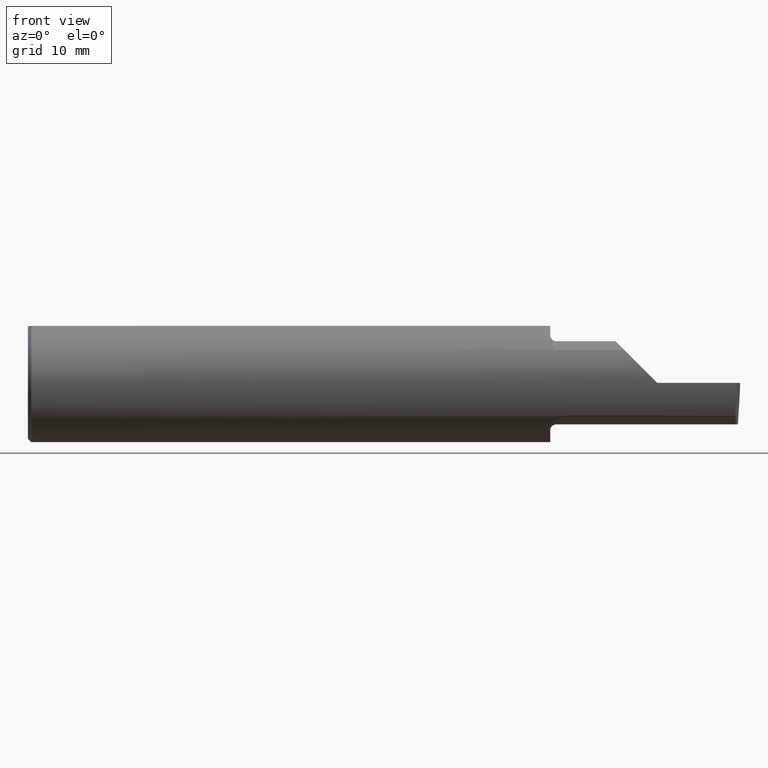
[diagram: clean part render]
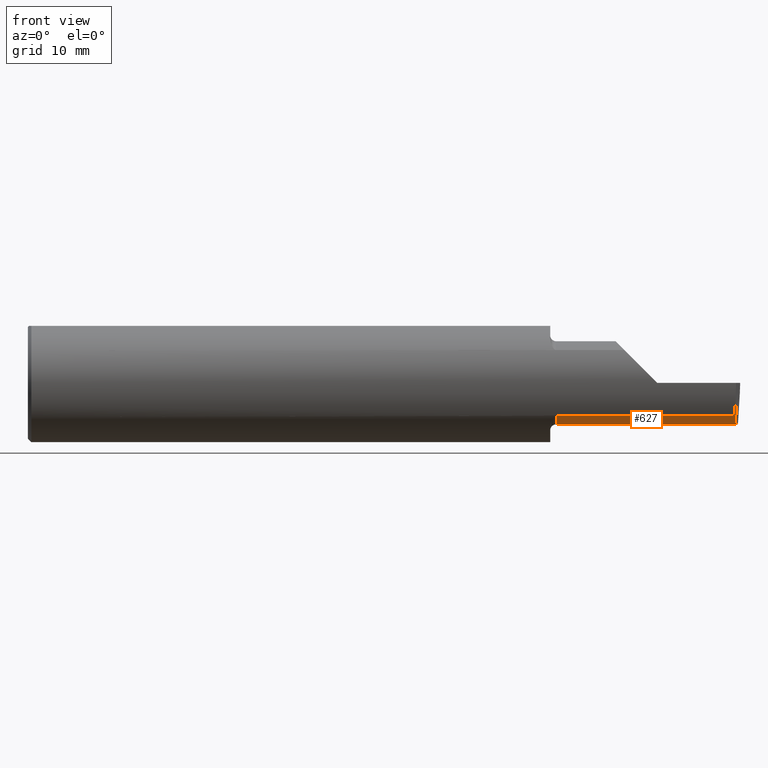
[diagram: same view with one face highlighted and labeled with its STEP entity id]
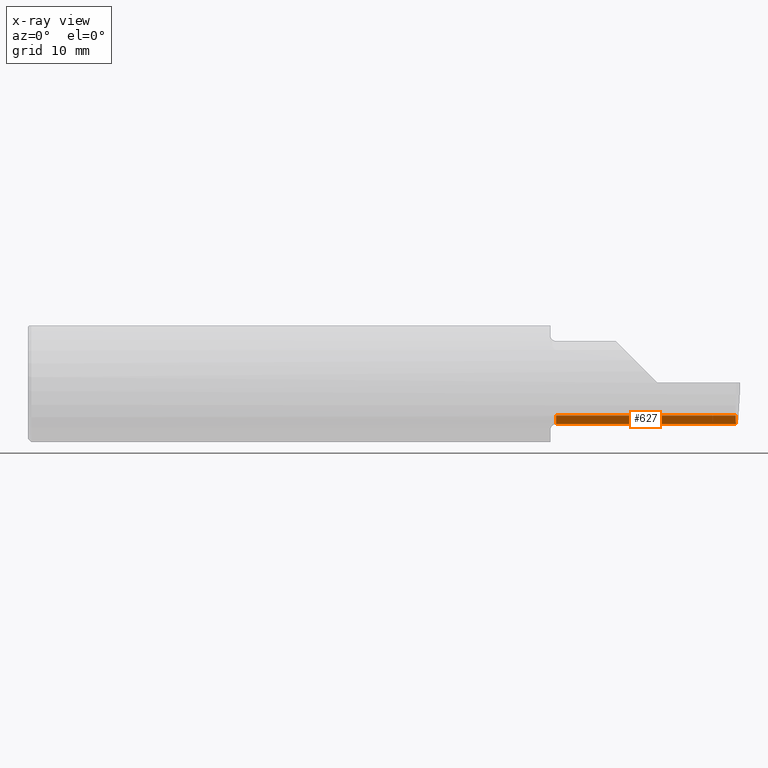
[diagram: x-ray of the same camera — body ghosted, the highlighted face saturated]
A machine part, front view. The second image highlights one B-rep face of the part: STEP entity #627.
The next image is the same camera in x-ray: the body ghosted, the highlighted face saturated — about 0% of this face is hidden behind the body in this view.
In plain terms, the highlighted cylindrical surface (partial cylindrical patch) has radius 4.445 mm, axis along (-1, -0, -0).
Its self-contained STEP definition (entity closure, byte-faithful):
#5 = CIRCLE ( 'NONE', #331, 0.1749999999999999889 ) ;
#7 = CARTESIAN_POINT ( 'NONE',  ( 2.200000000000000178, -0.1008499999999999674, 0.000000000000000000 ) ) ;
#18 = DIRECTION ( 'NONE',  ( 0.000000000000000000, 0.000000000000000000, 1.000000000000000000 ) ) ;
#21 = ORIENTED_EDGE ( 'NONE', *, *, #469, .T. ) ;
#45 = VERTEX_POINT ( 'NONE', #262 ) ;
#55 = VERTEX_POINT ( 'NONE', #431 ) ;
#57 = LINE ( 'NONE', #310, #383 ) ;
#68 = ORIENTED_EDGE ( 'NONE', *, *, #274, .F. ) ;
#83 = VECTOR ( 'NONE', #674, 39.37007874015748143 ) ;
#86 = DIRECTION ( 'NONE',  ( -1.000000000000000000, -0.000000000000000000, -0.000000000000000000 ) ) ;
#98 = VERTEX_POINT ( 'NONE', #253 ) ;
#137 = CARTESIAN_POINT ( 'NONE',  ( 2.200000000000000178, -0.1008499999999999536, -0.1749999999999999889 ) ) ;
#253 = CARTESIAN_POINT ( 'NONE',  ( 2.980479240051444378, -0.2080850024789291652, -0.1382955322609665250 ) ) ;
#262 = CARTESIAN_POINT ( 'NONE',  ( 2.885029432995152465, -0.1008500000000000091, -0.1749999999999999889 ) ) ;
#266 = CARTESIAN_POINT ( 'NONE',  ( 2.225000000000000089, -0.1008499999999999674, 0.000000000000000000 ) ) ;
#272 = LINE ( 'NONE', #137, #668 ) ;
#274 = EDGE_CURVE ( 'NONE', #98, #574, #712, .T. ) ;
#310 = CARTESIAN_POINT ( 'NONE',  ( 2.549499999999999655, -0.2080850024789291652, -0.1382955322609665250 ) ) ;
#327 = DIRECTION ( 'NONE',  ( 0.000000000000000000, 0.000000000000000000, 1.000000000000000000 ) ) ;
#330 = CARTESIAN_POINT ( 'NONE',  ( 2.225000000000000089, -0.2080850024789291375, -0.1382955322609665805 ) ) ;
#331 = AXIS2_PLACEMENT_3D ( 'NONE', #266, #396, #18 ) ;
#376 = DIRECTION ( 'NONE',  ( -1.000000000000000000, -0.000000000000000000, -0.000000000000000000 ) ) ;
#383 = VECTOR ( 'NONE', #376, 39.37007874015748143 ) ;
#388 = FACE_OUTER_BOUND ( 'NONE', #474, .T. ) ;
#396 = DIRECTION ( 'NONE',  ( -1.000000000000000000, -0.000000000000000000, -0.000000000000000000 ) ) ;
#416 = CARTESIAN_POINT ( 'NONE',  ( 2.980931506555613453, -0.1771157075472509779, -0.1623092683844330475 ) ) ;
#431 = CARTESIAN_POINT ( 'NONE',  ( 2.225000000000000089, -0.1008499999999999536, -0.1749999999999999889 ) ) ;
#453 = EDGE_CURVE ( 'NONE', #574, #45, #736, .T. ) ;
#469 = EDGE_CURVE ( 'NONE', #98, #648, #57, .T. ) ;
#474 = EDGE_LOOP ( 'NONE', ( #669, #790, #68, #21, #660 ) ) ;
#564 = AXIS2_PLACEMENT_3D ( 'NONE', #7, #86, #327 ) ;
#574 = VERTEX_POINT ( 'NONE', #637 ) ;
#598 = CARTESIAN_POINT ( 'NONE',  ( 2.981893741990786495, -0.1400387324517231025, -0.1750000000000000167 ) ) ;
#611 = EDGE_CURVE ( 'NONE', #55, #648, #5, .T. ) ;
#621 = CARTESIAN_POINT ( 'NONE',  ( 3.000000000000000444, -0.1008499999999999813, -0.1749999999999999889 ) ) ;
#625 = EDGE_CURVE ( 'NONE', #45, #55, #272, .T. ) ;
#627 = ADVANCED_FACE ( 'NONE', ( #388 ), #633, .T. ) ;
#633 = CYLINDRICAL_SURFACE ( 'NONE', #564, 0.1749999999999999889 ) ;
#637 = CARTESIAN_POINT ( 'NONE',  ( 2.983262242683407006, -0.1008499999999999674, -0.1749999999999999889 ) ) ;
#643 = CARTESIAN_POINT ( 'NONE',  ( 2.980479240051444378, -0.2080850024789291652, -0.1382955322609665250 ) ) ;
#648 = VERTEX_POINT ( 'NONE', #330 ) ;
#660 = ORIENTED_EDGE ( 'NONE', *, *, #611, .F. ) ;
#668 = VECTOR ( 'NONE', #695, 39.37007874015748143 ) ;
#669 = ORIENTED_EDGE ( 'NONE', *, *, #625, .F. ) ;
#674 = DIRECTION ( 'NONE',  ( -1.000000000000000000, -0.000000000000000000, -0.000000000000000000 ) ) ;
#695 = DIRECTION ( 'NONE',  ( -1.000000000000000000, -0.000000000000000000, -0.000000000000000000 ) ) ;
#712 =( BOUNDED_CURVE ( )  B_SPLINE_CURVE ( 3, ( #643, #416, #598, #775 ),
 .UNSPECIFIED., .F., .T. ) 
 B_SPLINE_CURVE_WITH_KNOTS ( ( 4, 4 ),
 ( 0.2675252011803428975, 0.9270880441442503894 ),
 .UNSPECIFIED. ) 
 CURVE ( )  GEOMETRIC_REPRESENTATION_ITEM ( )  RATIONAL_B_SPLINE_CURVE ( ( 1.000000000000000000, 0.9640754331822828371, 0.9640754331822828371, 1.000000000000000000 ) ) 
 REPRESENTATION_ITEM ( '' )  );
#736 = LINE ( 'NONE', #621, #83 ) ;
#775 = CARTESIAN_POINT ( 'NONE',  ( 2.983262242683407006, -0.1008499999999999674, -0.1749999999999999889 ) ) ;
#790 = ORIENTED_EDGE ( 'NONE', *, *, #453, .F. ) ;